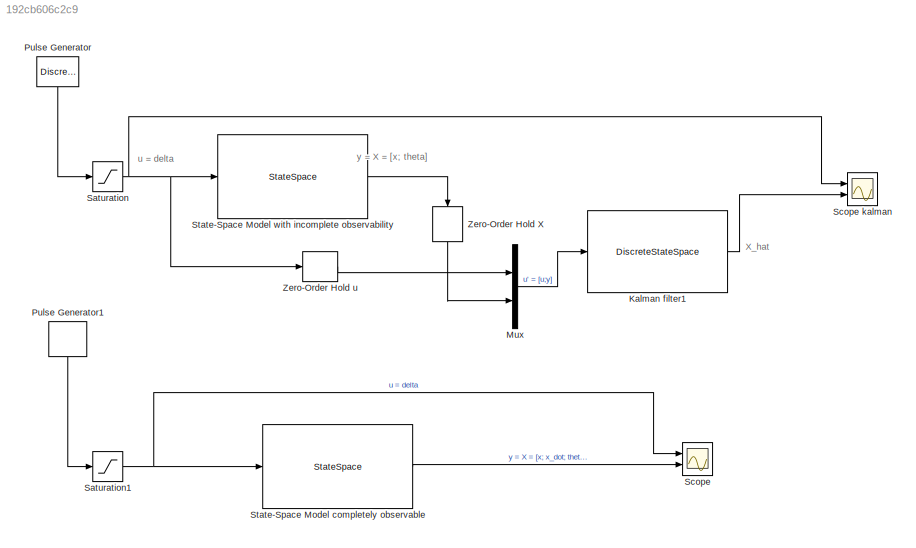
MODEL slx_192cb606c2c9
KIND model
CONFIG AbsTol = auto
CONFIG EnableMultiTasking = off
CONFIG FixedStep = auto
CONFIG MaxStep = auto
CONFIG MinStep = auto
CONFIG RelTol = 1e-3
CONFIG SampleTimeConstraint = Unconstrained
CONFIG Solver = VariableStepAuto
CONFIG SolverName = VariableStepAuto
CONFIG StartTime = 0.0
CONFIG StopTime = 10
BLOCK [DiscreteStateSpace] Kalman filter1
  A = [    0.9697    0.0100   -0.0012         0;\n   -0.0460    0.8959   -0.0171         0;\n   -0.0012         0    0.9939    0.0100;\n    0.0129   -0.0431   -0.3693    0.9938]
  B = [         0    0.0303    0.0012;\n    0.5129    0.0460    0.0171;\n         0    0.0012    0.0061;\n    0.2102   -0.0129    0.0019]
  C = eye(4)
  D = zeros(4,3)
  SampleTime = 0.01
  StateIdentifier = X_hat
  X0 = [1;0;pi;0]
BLOCK [Mux] Mux
  DisplayOption = bar
  Inputs = 2
  Ports = [2, 1]
BLOCK [DiscretePulseGenerator] Pulse Generator
  Amplitude = 0.9
  Period = 10
  Ports = [0, 1]
  PulseType = Time based
  PulseWidth = 3.4
BLOCK [DiscretePulseGenerator] Pulse Generator1
  Amplitude = 0.9
  Period = 10
  Ports = [0, 1]
  PulseType = Time based
  PulseWidth = 3.4
BLOCK [Saturate] Saturation
  InputPortMap = u0
  LowerLimit = -0.8
  Ports = [1, 1]
  UpperLimit = 0.9
BLOCK [Saturate] Saturation1
  InputPortMap = u0
  LowerLimit = -0.8
  Ports = [1, 1]
  UpperLimit = 0.9
BLOCK [Scope] Scope 
  NumInputPorts = 2
  Ports = [2]
  ScopeSpecificationString = Simulink.scopes.TimeScopeBlockCfg('CurrentConfiguration', extmgr.ConfigurationSet(extmgr.Configuration('Core','General UI',true),extmgr.Configuration('Core','Source UI',true),extmgr.Configuration('Sources','WiredSimulink',true,'DataLoggingVariableName','ScopeData1'),extmgr.Configuration('Visuals','Time Domain',true,'SerializedDisplays',{struct('MinYLimReal','-21.04672','MaxYLimReal','19.31082','YL...<+1594ch>
BLOCK [Scope] Scope kalman
  NumInputPorts = 2
  Ports = [2]
  ScopeSpecificationString = Simulink.scopes.TimeScopeBlockCfg('CurrentConfiguration', extmgr.ConfigurationSet(extmgr.Configuration('Core','General UI',true),extmgr.Configuration('Core','Source UI',true),extmgr.Configuration('Sources','WiredSimulink',true),extmgr.Configuration('Visuals','Time Domain',true,'SerializedDisplays',{struct('MinYLimReal','-22.23553','MaxYLimReal','21.77881','YLabelReal','','MinYLimMag','0.00000','Ma...<+1461ch>
BLOCK [StateSpace] State-Space Model completely observable
  A = [0    1.0000         0         0;\n         0  -10.4100         0         0;\n         0         0         0    1.0000;\n         0    -4.3111   -36.7400   -0.6249]
  B = [0;\n   51.2860;\n         0;\n  21.0230]
  C = eye(4)
  D = [0; 0;0;0]
  Ports = [1, 1]
  X0 = [1; 0; pi; 0.1]
BLOCK [StateSpace] State-Space Model with incomplete observability
  A = [0    1.0000         0         0;\n         0  -10.4100         0         0;\n         0         0         0    1.0000;\n         0    -4.3111   -36.7400   -0.6249]
  B = [0;\n   51.2860;\n         0;\n  21.0230]
  C = [1 0 0 0;0 0 1 0]
  D = [0; 0]
  Ports = [1, 1]
  X0 = [1; 0; pi; 0.1]
BLOCK [ZeroOrderHold] Zero-Order Hold X 
  SampleTime = 0.01
BLOCK [ZeroOrderHold] Zero-Order Hold u 
  SampleTime = 0.01
ANNOTATION (root): X_hat
ANNOTATION (root): u = delta
ANNOTATION (root): y = X = [x; theta]
LINE Kalman filter1:1 -> Scope kalman:2
LINE Mux:1 -> Kalman filter1:1
LINE Pulse Generator1:1 -> Saturation1:1
LINE Pulse Generator:1 -> Saturation:1
NET Saturation1:1 -> Scope :1, State-Space Model completely observable:1
NET Saturation:1 -> Scope kalman:1, State-Space Model with incomplete observability:1, Zero-Order Hold u :1
LINE State-Space Model completely observable:1 -> Scope :2
LINE State-Space Model with incomplete observability:1 -> Zero-Order Hold X :1
LINE Zero-Order Hold X :1 -> Mux:2
LINE Zero-Order Hold u :1 -> Mux:1
note: NET lines group one-source signal fan-out (src -> all destinations, sorted); 1:1 wires keep LINE
